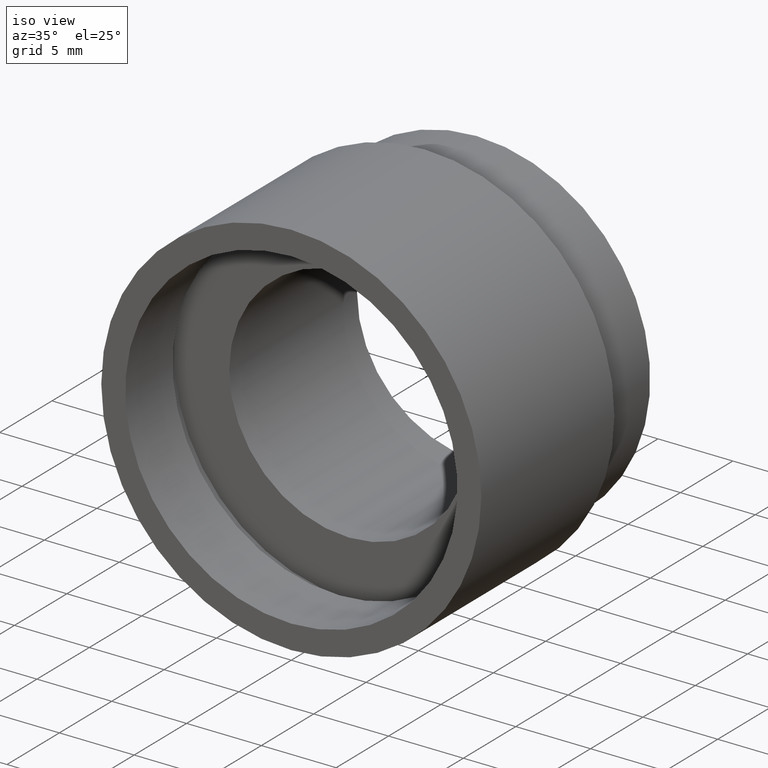
[diagram: clean part render]
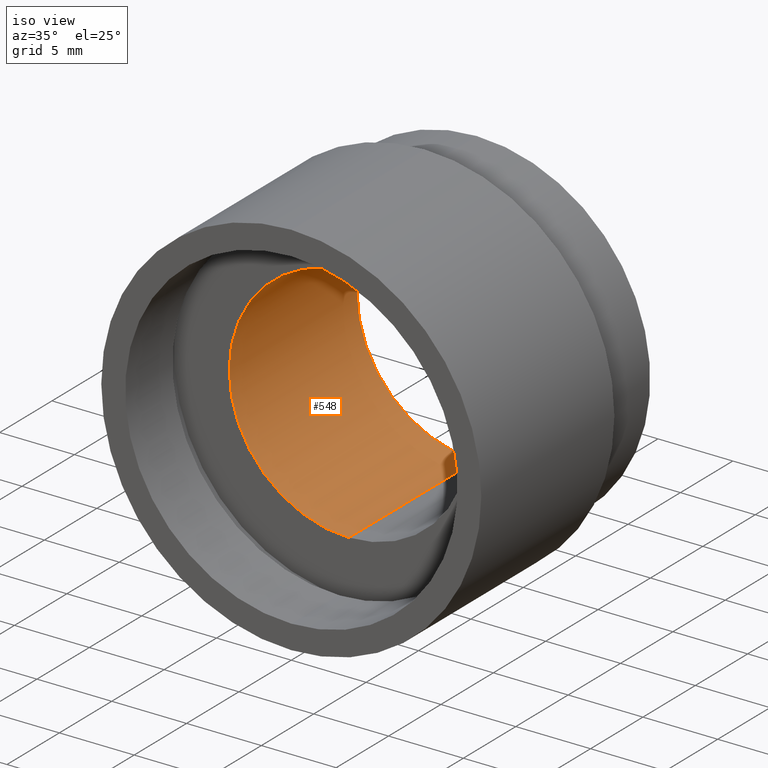
[diagram: same view with one face highlighted and labeled with its STEP entity id]
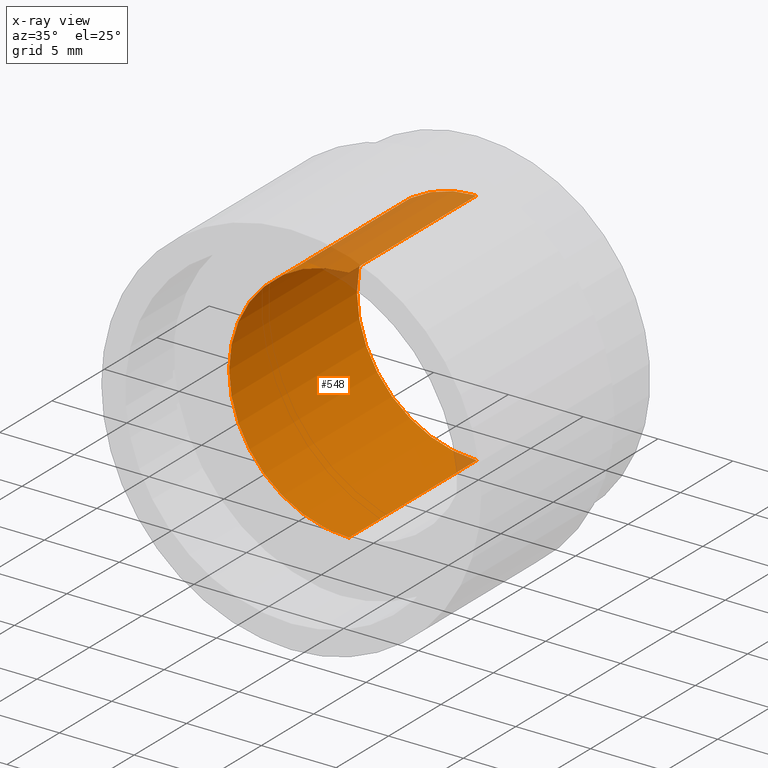
[diagram: x-ray of the same camera — body ghosted, the highlighted face saturated]
A machine part, iso view. The second image highlights one B-rep face of the part: STEP entity #548.
The next image is the same camera in x-ray: the body ghosted, the highlighted face saturated — about 13% of this face is hidden behind the body in this view.
In plain terms, the highlighted cylindrical surface (partial cylindrical patch) has radius 8 mm, axis along (-0, 1, -0).
Its self-contained STEP definition (entity closure, byte-faithful):
#48 = VECTOR ( 'NONE', #273, 1000.000000000000000 ) ;
#50 = AXIS2_PLACEMENT_3D ( 'NONE', #288, #150, #75 ) ;
#57 = ORIENTED_EDGE ( 'NONE', *, *, #448, .F. ) ;
#69 = CIRCLE ( 'NONE', #357, 8.000000000000019500 ) ;
#75 = DIRECTION ( 'NONE',  ( 0.0000000000000000000, 0.0000000000000000000, 1.000000000000000000 ) ) ;
#106 = VERTEX_POINT ( 'NONE', #443 ) ;
#128 = CARTESIAN_POINT ( 'NONE',  ( 9.797174393178849300E-016, 161.3761669434274500, -8.000000000000019500 ) ) ;
#150 = DIRECTION ( 'NONE',  ( -0.0000000000000000000, 1.000000000000000000, -0.0000000000000000000 ) ) ;
#152 = EDGE_CURVE ( 'NONE', #397, #597, #352, .T. ) ;
#173 = VERTEX_POINT ( 'NONE', #457 ) ;
#175 = CARTESIAN_POINT ( 'NONE',  ( 0.0000000000000000000, 161.3761669434274500, 0.0000000000000000000 ) ) ;
#203 = ORIENTED_EDGE ( 'NONE', *, *, #236, .F. ) ;
#205 = FACE_OUTER_BOUND ( 'NONE', #210, .T. ) ;
#210 = EDGE_LOOP ( 'NONE', ( #203, #610, #430, #57 ) ) ;
#232 = DIRECTION ( 'NONE',  ( -0.0000000000000000000, 1.000000000000000000, -0.0000000000000000000 ) ) ;
#236 = EDGE_CURVE ( 'NONE', #397, #106, #69, .T. ) ;
#261 = CARTESIAN_POINT ( 'NONE',  ( 9.797174393178849300E-016, 5.499999999999976900, -8.000000000000019500 ) ) ;
#273 = DIRECTION ( 'NONE',  ( -0.0000000000000000000, 1.000000000000000000, -0.0000000000000000000 ) ) ;
#288 = CARTESIAN_POINT ( 'NONE',  ( 0.0000000000000000000, 17.69999999999996700, 0.0000000000000000000 ) ) ;
#289 = CYLINDRICAL_SURFACE ( 'NONE', #400, 8.000000000000019500 ) ;
#300 = LINE ( 'NONE', #567, #48 ) ;
#325 = VECTOR ( 'NONE', #232, 1000.000000000000000 ) ;
#352 = LINE ( 'NONE', #128, #325 ) ;
#357 = AXIS2_PLACEMENT_3D ( 'NONE', #604, #559, #504 ) ;
#392 = EDGE_CURVE ( 'NONE', #597, #173, #482, .T. ) ;
#397 = VERTEX_POINT ( 'NONE', #261 ) ;
#400 = AXIS2_PLACEMENT_3D ( 'NONE', #175, #499, #454 ) ;
#430 = ORIENTED_EDGE ( 'NONE', *, *, #392, .T. ) ;
#443 = CARTESIAN_POINT ( 'NONE',  ( 0.0000000000000000000, 5.499999999999976900, 8.000000000000019500 ) ) ;
#448 = EDGE_CURVE ( 'NONE', #106, #173, #300, .T. ) ;
#454 = DIRECTION ( 'NONE',  ( 0.0000000000000000000, 0.0000000000000000000, 1.000000000000000000 ) ) ;
#457 = CARTESIAN_POINT ( 'NONE',  ( 0.0000000000000000000, 17.69999999999996700, 8.000000000000019500 ) ) ;
#463 = CARTESIAN_POINT ( 'NONE',  ( 9.797174393178849300E-016, 17.69999999999996700, -8.000000000000019500 ) ) ;
#482 = CIRCLE ( 'NONE', #50, 8.000000000000019500 ) ;
#499 = DIRECTION ( 'NONE',  ( -0.0000000000000000000, 1.000000000000000000, -0.0000000000000000000 ) ) ;
#504 = DIRECTION ( 'NONE',  ( 0.0000000000000000000, 0.0000000000000000000, 1.000000000000000000 ) ) ;
#548 = ADVANCED_FACE ( 'NONE', ( #205 ), #289, .F. ) ;
#559 = DIRECTION ( 'NONE',  ( -0.0000000000000000000, 1.000000000000000000, -0.0000000000000000000 ) ) ;
#567 = CARTESIAN_POINT ( 'NONE',  ( 0.0000000000000000000, 161.3761669434274500, 8.000000000000019500 ) ) ;
#597 = VERTEX_POINT ( 'NONE', #463 ) ;
#604 = CARTESIAN_POINT ( 'NONE',  ( 0.0000000000000000000, 5.499999999999976900, 0.0000000000000000000 ) ) ;
#610 = ORIENTED_EDGE ( 'NONE', *, *, #152, .T. ) ;